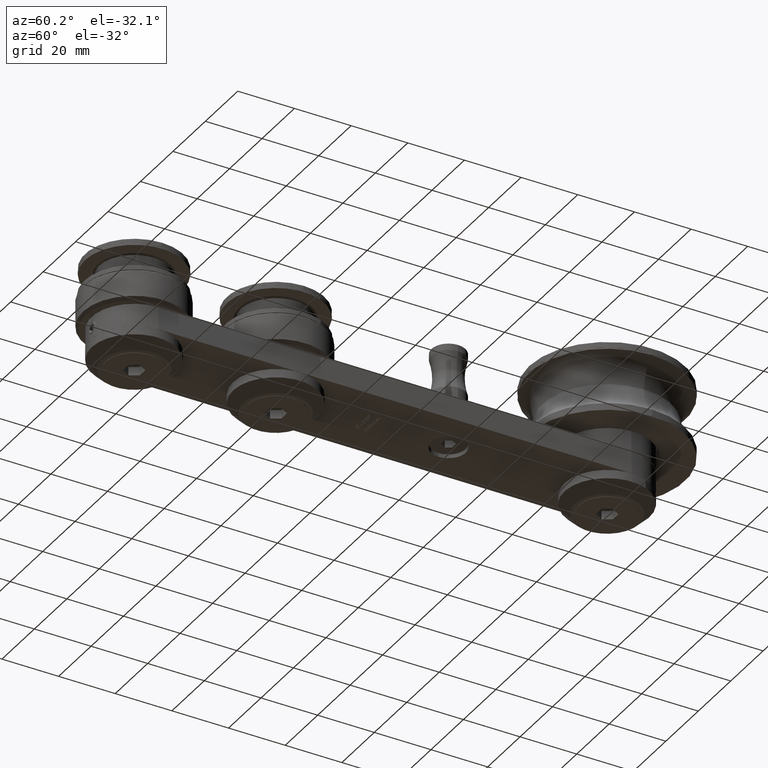
[diagram: clean part render]
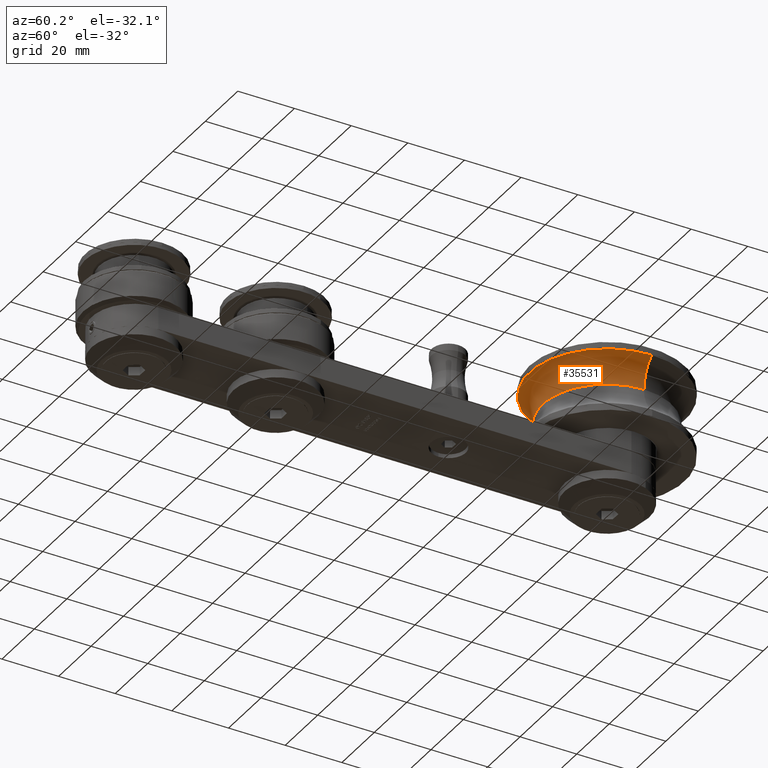
[diagram: same view with one face highlighted and labeled with its STEP entity id]
A machine part, auxiliary view. The second image highlights one B-rep face of the part: STEP entity #35531.
In plain terms, the highlighted toroidal blend (fillet) surface has major radius 35.25 mm and minor (blend) radius 12.5 mm.
Its self-contained STEP definition (entity closure, byte-faithful):
#437 = ORIENTED_EDGE ( 'NONE', *, *, #5680, .F. ) ;
#3052 = TOROIDAL_SURFACE ( 'NONE', #32516, 35.25000000000000000, 12.50000000000000000 ) ;
#3244 = VERTEX_POINT ( 'NONE', #32703 ) ;
#3291 = AXIS2_PLACEMENT_3D ( 'NONE', #6529, #45048, #31262 ) ;
#5680 = EDGE_CURVE ( 'NONE', #42454, #30125, #37382, .T. ) ;
#6529 = CARTESIAN_POINT ( 'NONE',  ( 0.0000000000000000000, 0.0000000000000000000, -1.530808498934191500E-015 ) ) ;
#6821 = ORIENTED_EDGE ( 'NONE', *, *, #12969, .T. ) ;
#7262 = AXIS2_PLACEMENT_3D ( 'NONE', #27115, #34474, #9726 ) ;
#9301 = EDGE_CURVE ( 'NONE', #30125, #42984, #15899, .T. ) ;
#9726 = DIRECTION ( 'NONE',  ( 1.000000000000000000, 4.336808689941907500E-019, 0.0000000000000000000 ) ) ;
#12969 = EDGE_CURVE ( 'NONE', #3244, #42984, #34063, .T. ) ;
#12991 = AXIS2_PLACEMENT_3D ( 'NONE', #24754, #38999, #28099 ) ;
#15899 = CIRCLE ( 'NONE', #21357, 12.49999999999999600 ) ;
#16363 = CARTESIAN_POINT ( 'NONE',  ( -27.50000000000000400, 3.355852473757881900E-015, 9.807522622966525100 ) ) ;
#18821 = CARTESIAN_POINT ( 'NONE',  ( 0.0000000000000000000, 0.0000000000000000000, 0.0000000000000000000 ) ) ;
#20822 = CARTESIAN_POINT ( 'NONE',  ( 27.50000000000070300, 1.192622389734055000E-017, 9.807522622966525100 ) ) ;
#21357 = AXIS2_PLACEMENT_3D ( 'NONE', #22900, #23196, #44158 ) ;
#22071 = ORIENTED_EDGE ( 'NONE', *, *, #9301, .F. ) ;
#22672 = EDGE_LOOP ( 'NONE', ( #43470, #6821, #22071, #437 ) ) ;
#22900 = CARTESIAN_POINT ( 'NONE',  ( 35.25000000000090200, 1.528725063204561300E-017, 0.0000000000000000000 ) ) ;
#23196 = DIRECTION ( 'NONE',  ( 4.336808689941907000E-019, -1.000000000000000000, 0.0000000000000000000 ) ) ;
#24754 = CARTESIAN_POINT ( 'NONE',  ( -35.25000000000090200, 4.301592716362485100E-015, 0.0000000000000000000 ) ) ;
#27115 = CARTESIAN_POINT ( 'NONE',  ( 0.0000000000000000000, 0.0000000000000000000, 9.807522622966525100 ) ) ;
#28099 = DIRECTION ( 'NONE',  ( -1.000000000000000000, 1.220309990457412200E-016, 0.0000000000000000000 ) ) ;
#30125 = VERTEX_POINT ( 'NONE', #20822 ) ;
#31262 = DIRECTION ( 'NONE',  ( 1.000000000000000000, 0.0000000000000000000, 0.0000000000000000000 ) ) ;
#32046 = FACE_OUTER_BOUND ( 'NONE', #22672, .T. ) ;
#32516 = AXIS2_PLACEMENT_3D ( 'NONE', #18821, #32856, #43282 ) ;
#32703 = CARTESIAN_POINT ( 'NONE',  ( -22.75000000000090600, 2.776205228290705900E-015, -1.530808498934171800E-015 ) ) ;
#32856 = DIRECTION ( 'NONE',  ( -0.0000000000000000000, 0.0000000000000000000, 1.000000000000000000 ) ) ;
#34063 = CIRCLE ( 'NONE', #3291, 22.75000000000000400 ) ;
#34474 = DIRECTION ( 'NONE',  ( -0.0000000000000000000, 0.0000000000000000000, 1.000000000000000000 ) ) ;
#35138 = CIRCLE ( 'NONE', #12991, 12.49999999999999600 ) ;
#35531 = ADVANCED_FACE ( 'NONE', ( #32046 ), #3052, .F. ) ;
#37382 = CIRCLE ( 'NONE', #7262, 27.50000000000070300 ) ;
#38999 = DIRECTION ( 'NONE',  ( 1.220309990457411400E-016, 1.000000000000000000, 0.0000000000000000000 ) ) ;
#39967 = CARTESIAN_POINT ( 'NONE',  ( 22.75000000000090600, 9.866239769618124200E-018, -1.530808498934171800E-015 ) ) ;
#41186 = EDGE_CURVE ( 'NONE', #42454, #3244, #35138, .T. ) ;
#42454 = VERTEX_POINT ( 'NONE', #16363 ) ;
#42984 = VERTEX_POINT ( 'NONE', #39967 ) ;
#43282 = DIRECTION ( 'NONE',  ( 1.000000000000000000, 4.336808689941907000E-019, 0.0000000000000000000 ) ) ;
#43470 = ORIENTED_EDGE ( 'NONE', *, *, #41186, .T. ) ;
#44158 = DIRECTION ( 'NONE',  ( 1.000000000000000000, 4.336808689941907500E-019, 0.0000000000000000000 ) ) ;
#45048 = DIRECTION ( 'NONE',  ( -0.0000000000000000000, 0.0000000000000000000, 1.000000000000000000 ) ) ;